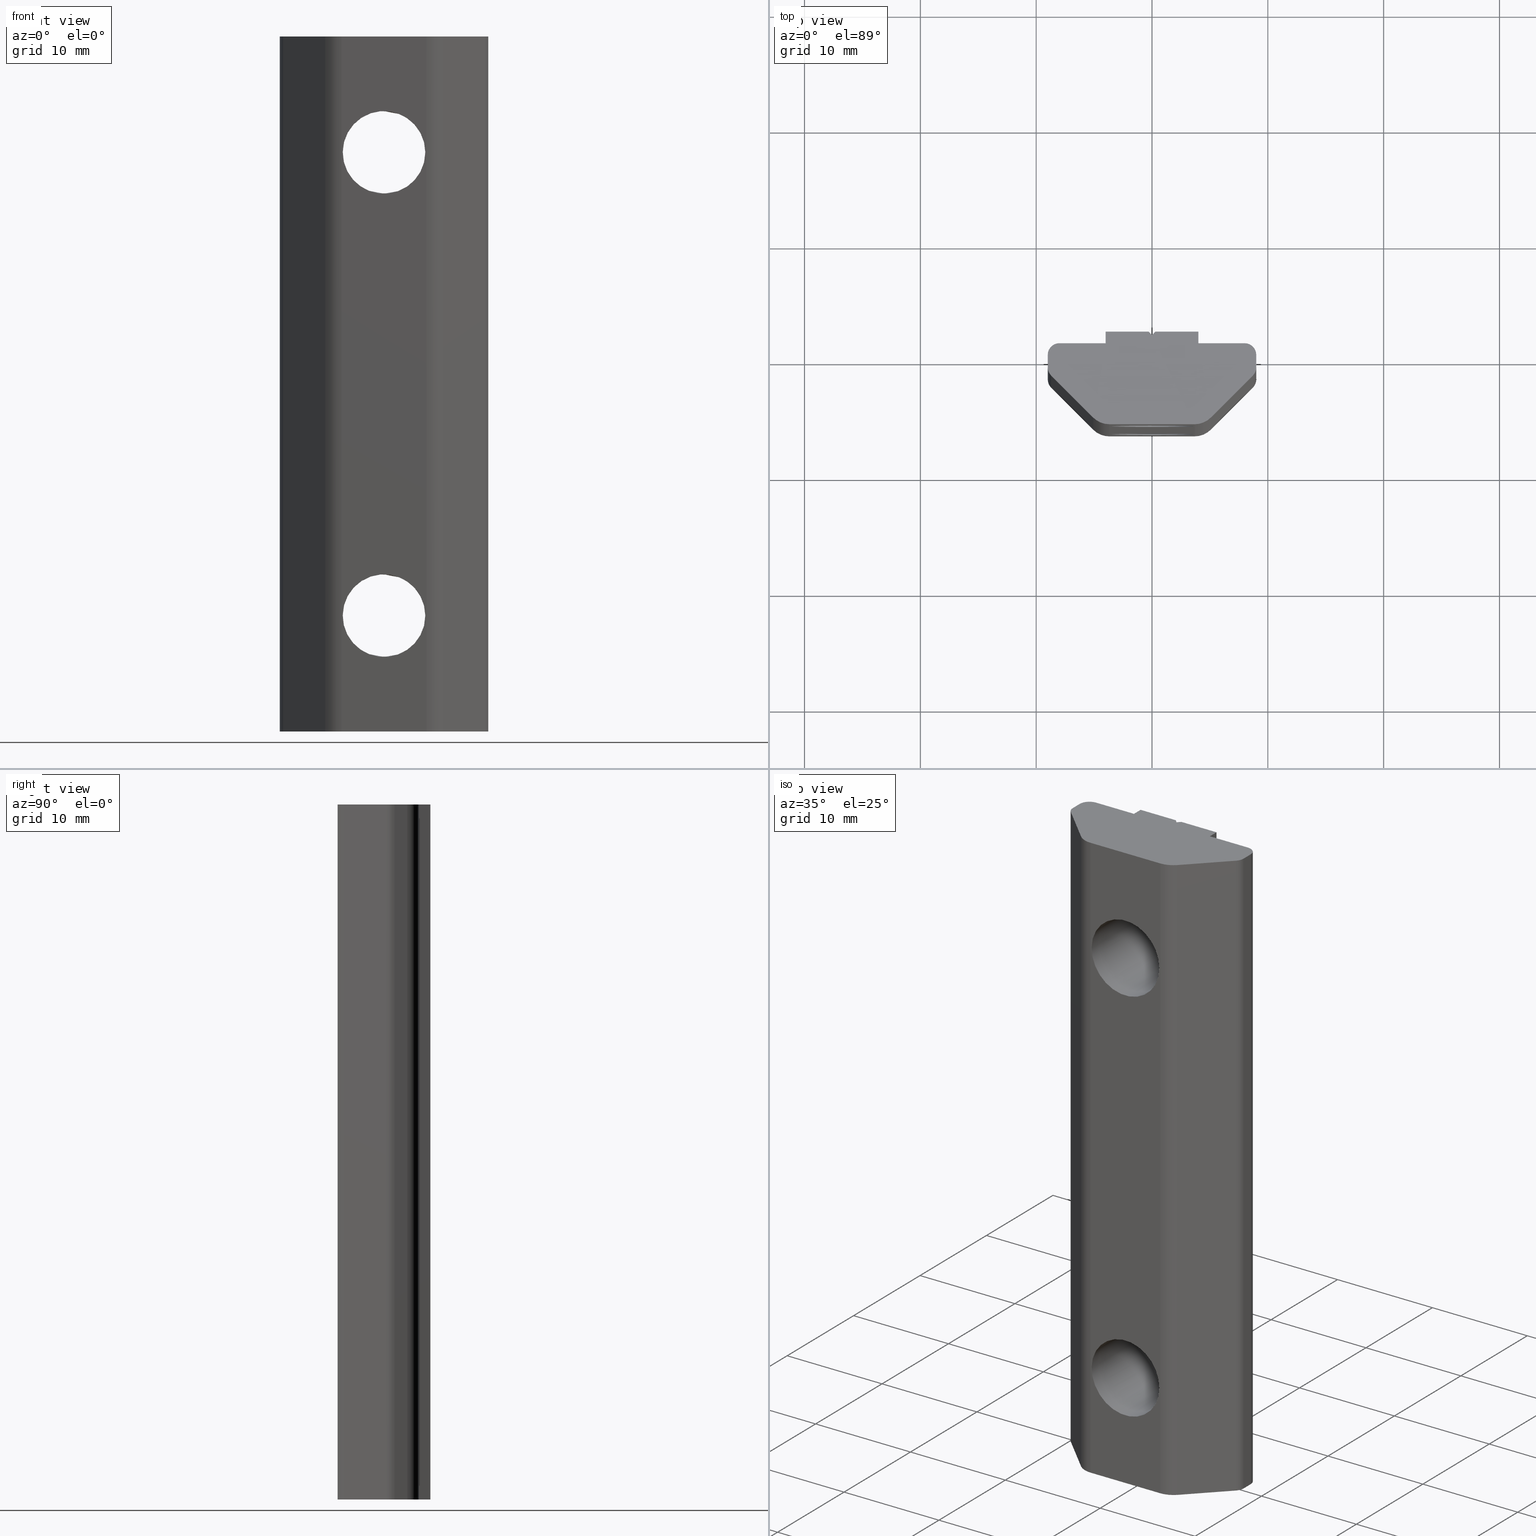
[diagram: canonical four-view strip — front | top / right | iso, engineering-drawing reading convention]
A machine part, canonical four-view strip (front | top / right | iso — engineering-drawing reading convention). The complete STEP part file that produces these views, byte-faithful:
ISO-10303-21;
HEADER;
/****************************************************************
 * Generated by software with PDE/Lib inside                    *
 * PDElib Version v51a, created Tue 12/06/2005                  *
 * International Technegroup Inc. (www.iti-oh.com)              *
 ****************************************************************/
FILE_DESCRIPTION((''),'2;1');
FILE_NAME('D:\\3D_modulsystem\\accessori\\MA1344.stp','2007-09-17T16:42:38',('giancarlo'),(''),'Autodesk Inventor 11','Autodesk Inventor 11','');
FILE_SCHEMA(('AUTOMOTIVE_DESIGN { 1 0 10303 214 1 1 1 1 }'));
ENDSEC;
DATA;
#5=APPLICATION_CONTEXT('automotive design');
#6=APPLICATION_PROTOCOL_DEFINITION('Draft International Standard','automotive_design',1998,#5);
#7=PRODUCT_CONTEXT('None',#5,'mechanical');
#8=PRODUCT('MA1344','MA1344','None',(#7));
#9=PRODUCT_RELATED_PRODUCT_CATEGORY('part','description',(#8));
#10=PRODUCT_DEFINITION_FORMATION('None','None',#8);
#11=PRODUCT_DEFINITION_CONTEXT('part definition',#5,'design');
#12=PRODUCT_DEFINITION('None','None',#10,#11);
#18=(NAMED_UNIT(*)PLANE_ANGLE_UNIT()SI_UNIT($,.RADIAN.));
#19=DIMENSIONAL_EXPONENTS(0.0,0.0,0.0,0.0,0.0,0.0,0.0);
#20=PLANE_ANGLE_MEASURE_WITH_UNIT(PLANE_ANGLE_MEASURE(0.017453292500000),#18);
#24=(CONVERSION_BASED_UNIT('DEGREE',#20)NAMED_UNIT(#19)PLANE_ANGLE_UNIT());
#28=(NAMED_UNIT(*)SI_UNIT($,.STERADIAN.)SOLID_ANGLE_UNIT());
#32=(LENGTH_UNIT()NAMED_UNIT(*)SI_UNIT(.MILLI.,.METRE.));
#34=UNCERTAINTY_MEASURE_WITH_UNIT(LENGTH_MEASURE(0.010000000000000),#32,'DISTANCE_ACCURACY_VALUE','');
#36=(GEOMETRIC_REPRESENTATION_CONTEXT(3)GLOBAL_UNCERTAINTY_ASSIGNED_CONTEXT((#34))GLOBAL_UNIT_ASSIGNED_CONTEXT((#24,#28,#32))REPRESENTATION_CONTEXT('None','None'));
#37=AXIS2_PLACEMENT_3D('',#38,#39,#40);
#38=CARTESIAN_POINT('',(0.0,0.0,0.0));
#39=DIRECTION('',(0.0,0.0,1.0));
#40=DIRECTION('',(1.0,0.0,0.0));
#41=SHAPE_REPRESENTATION('',(#37),#36);
#42=PRODUCT_DEFINITION_SHAPE('','',#12);
#43=SHAPE_DEFINITION_REPRESENTATION(#42,#41);
#44=CARTESIAN_POINT('',(-3.566999999999998,1.796296336915761,20.0));
#45=CARTESIAN_POINT('',(-3.567000000000004,-6.203703663084244,20.0));
#46=CARTESIAN_POINT('',(-3.566999999999997,1.796296336915761,23.566999999999997));
#47=CARTESIAN_POINT('',(-3.567000000000003,-6.203703663084244,23.566999999999997));
#48=CARTESIAN_POINT('',(2.220446E-015,1.796296336915758,23.567000000000000));
#49=CARTESIAN_POINT('',(-3.780759E-015,-6.203703663084246,23.567000000000000));
#50=CARTESIAN_POINT('',(3.567000000000001,1.796296336915755,23.566999999999997));
#51=CARTESIAN_POINT('',(3.566999999999996,-6.203703663084249,23.566999999999997));
#52=CARTESIAN_POINT('',(3.567000000000002,1.796296336915755,20.0));
#53=CARTESIAN_POINT('',(3.566999999999996,-6.203703663084249,20.0));
#54=CARTESIAN_POINT('',(3.567000000000001,1.796296336915755,16.433000000000000));
#55=CARTESIAN_POINT('',(3.566999999999996,-6.203703663084249,16.433000000000000));
#56=CARTESIAN_POINT('',(2.220446E-015,1.796296336915758,16.433000000000000));
#57=CARTESIAN_POINT('',(-3.780759E-015,-6.203703663084246,16.433000000000000));
#58=CARTESIAN_POINT('',(-3.566999999999997,1.796296336915761,16.433000000000000));
#59=CARTESIAN_POINT('',(-3.567000000000003,-6.203703663084244,16.433000000000000));
#60=CARTESIAN_POINT('',(-3.566999999999998,1.796296336915761,20.0));
#61=CARTESIAN_POINT('',(-3.567000000000004,-6.203703663084244,20.0));
#69=(BOUNDED_SURFACE()B_SPLINE_SURFACE(1,2,((#44,#46,#48,#50,#52,#54,#56,#58,#60),(#45,#47,#49,#51,#53,#55,#57,#59,#61)),.UNSPECIFIED.,.F.,.T.,.U.)B_SPLINE_SURFACE_WITH_KNOTS((2,2),(3,2,2,2,3),(-1.121390524250072,1.121390524250070),(0.0,5.603030497677397,11.206060995354793,16.809091493032188,22.412121990709586),.UNSPECIFIED.)GEOMETRIC_REPRESENTATION_ITEM()RATIONAL_B_SPLINE_SURFACE(((1.0,0.707106781186548,1.0,0.707106781186548,1.0,0.707106781186548,1.0,0.707106781186548,1.0),(1.0,0.707106781186548,1.0,0.707106781186548,1.0,0.707106781186548,1.0,0.707106781186548,1.0)))REPRESENTATION_ITEM('')SURFACE());
#70=CARTESIAN_POINT('',(2.884628E-016,1.496296336915752,16.433000000000000));
#71=VERTEX_POINT('',#70);
#72=CARTESIAN_POINT('',(0.300000000000001,1.796296336915752,16.445638031938785));
#73=VERTEX_POINT('',#72);
#74=CARTESIAN_POINT('',(1.995401E-015,1.496296336915754,20.0));
#75=DIRECTION('',(0.707106781186546,-0.707106781186549,0.0));
#76=DIRECTION('',(0.707106781186549,0.707106781186546,0.0));
#77=AXIS2_PLACEMENT_3D('',#74,#75,#76);
#78=ELLIPSE('',#77,5.044499776984827,3.567000000000001);
#79=EDGE_CURVE('',#71,#73,#78,.T.);
#80=ORIENTED_EDGE('',*,*,#79,.F.);
#81=CARTESIAN_POINT('',(-0.300000000000000,1.796296336915752,16.445638031938785));
#82=VERTEX_POINT('',#81);
#83=CARTESIAN_POINT('',(1.995401E-015,1.496296336915749,20.0));
#84=DIRECTION('',(-0.707106781186547,-0.707106781186548,0.0));
#85=DIRECTION('',(0.707106781186548,-0.707106781186547,0.0));
#86=AXIS2_PLACEMENT_3D('',#83,#84,#85);
#87=ELLIPSE('',#86,5.044499776984824,3.567000000000001);
#88=EDGE_CURVE('',#82,#71,#87,.T.);
#89=ORIENTED_EDGE('',*,*,#88,.F.);
#90=CARTESIAN_POINT('',(-0.300000000000000,1.796296336915752,23.554361968061215));
#91=VERTEX_POINT('',#90);
#92=CARTESIAN_POINT('',(2.220446E-015,1.796296336915752,20.0));
#93=DIRECTION('',(0.0,-1.0,0.0));
#94=DIRECTION('',(1.0,0.0,0.0));
#95=AXIS2_PLACEMENT_3D('',#92,#93,#94);
#96=CIRCLE('',#95,3.567000000000000);
#97=EDGE_CURVE('',#91,#82,#96,.T.);
#98=ORIENTED_EDGE('',*,*,#97,.F.);
#99=CARTESIAN_POINT('',(2.884628E-016,1.496296336915752,23.567000000000000));
#100=VERTEX_POINT('',#99);
#101=CARTESIAN_POINT('',(1.995401E-015,1.496296336915749,20.0));
#102=DIRECTION('',(-0.707106781186547,-0.707106781186548,0.0));
#103=DIRECTION('',(0.707106781186548,-0.707106781186547,0.0));
#104=AXIS2_PLACEMENT_3D('',#101,#102,#103);
#105=ELLIPSE('',#104,5.044499776984824,3.567000000000001);
#106=EDGE_CURVE('',#100,#91,#105,.T.);
#107=ORIENTED_EDGE('',*,*,#106,.F.);
#108=CARTESIAN_POINT('',(0.300000000000001,1.796296336915752,23.554361968061215));
#109=VERTEX_POINT('',#108);
#110=CARTESIAN_POINT('',(1.995401E-015,1.496296336915754,20.0));
#111=DIRECTION('',(0.707106781186546,-0.707106781186549,0.0));
#112=DIRECTION('',(0.707106781186549,0.707106781186546,0.0));
#113=AXIS2_PLACEMENT_3D('',#110,#111,#112);
#114=ELLIPSE('',#113,5.044499776984827,3.567000000000001);
#115=EDGE_CURVE('',#109,#100,#114,.T.);
#116=ORIENTED_EDGE('',*,*,#115,.F.);
#117=CARTESIAN_POINT('',(2.220446E-015,1.796296336915752,20.0));
#118=DIRECTION('',(0.0,-1.0,0.0));
#119=DIRECTION('',(1.0,0.0,0.0));
#120=AXIS2_PLACEMENT_3D('',#117,#118,#119);
#121=CIRCLE('',#120,3.567000000000000);
#122=EDGE_CURVE('',#73,#109,#121,.T.);
#123=ORIENTED_EDGE('',*,*,#122,.F.);
#124=EDGE_LOOP('',(#80,#89,#98,#107,#116,#123));
#125=FACE_OUTER_BOUND('',#124,.T.);
#126=CARTESIAN_POINT('',(3.566999999999996,-6.203703663084252,20.0));
#127=VERTEX_POINT('',#126);
#128=CARTESIAN_POINT('',(-3.780759E-015,-6.203703663084241,20.0));
#129=DIRECTION('',(0.0,1.0,0.0));
#130=DIRECTION('',(1.0,0.0,0.0));
#131=AXIS2_PLACEMENT_3D('',#128,#129,#130);
#132=CIRCLE('',#131,3.567000000000000);
#133=EDGE_CURVE('',#127,#127,#132,.T.);
#134=ORIENTED_EDGE('',*,*,#133,.F.);
#135=EDGE_LOOP('',(#134));
#136=FACE_BOUND('',#135,.T.);
#137=ADVANCED_FACE('',(#125,#136),#69,.F.);
#138=CARTESIAN_POINT('',(-3.566999999999998,1.796296336915761,-20.0));
#139=CARTESIAN_POINT('',(-3.567000000000004,-6.203703663084244,-20.0));
#140=CARTESIAN_POINT('',(-3.566999999999997,1.796296336915761,-16.433000000000000));
#141=CARTESIAN_POINT('',(-3.567000000000003,-6.203703663084244,-16.433000000000000));
#142=CARTESIAN_POINT('',(2.220446E-015,1.796296336915758,-16.433000000000000));
#143=CARTESIAN_POINT('',(-3.780759E-015,-6.203703663084246,-16.433000000000000));
#144=CARTESIAN_POINT('',(3.567000000000001,1.796296336915755,-16.433000000000000));
#145=CARTESIAN_POINT('',(3.566999999999996,-6.203703663084249,-16.433000000000000));
#146=CARTESIAN_POINT('',(3.567000000000002,1.796296336915755,-20.0));
#147=CARTESIAN_POINT('',(3.566999999999996,-6.203703663084249,-20.0));
#148=CARTESIAN_POINT('',(3.567000000000001,1.796296336915755,-23.566999999999997));
#149=CARTESIAN_POINT('',(3.566999999999996,-6.203703663084249,-23.566999999999997));
#150=CARTESIAN_POINT('',(2.220446E-015,1.796296336915758,-23.567000000000000));
#151=CARTESIAN_POINT('',(-3.780759E-015,-6.203703663084246,-23.567000000000000));
#152=CARTESIAN_POINT('',(-3.566999999999997,1.796296336915761,-23.566999999999997));
#153=CARTESIAN_POINT('',(-3.567000000000003,-6.203703663084244,-23.566999999999997));
#154=CARTESIAN_POINT('',(-3.566999999999998,1.796296336915761,-20.0));
#155=CARTESIAN_POINT('',(-3.567000000000004,-6.203703663084244,-20.0));
#163=(BOUNDED_SURFACE()B_SPLINE_SURFACE(1,2,((#138,#140,#142,#144,#146,#148,#150,#152,#154),(#139,#141,#143,#145,#147,#149,#151,#153,#155)),.UNSPECIFIED.,.F.,.T.,.U.)B_SPLINE_SURFACE_WITH_KNOTS((2,2),(3,2,2,2,3),(-1.121390524250072,1.121390524250070),(0.0,5.603030497677397,11.206060995354793,16.809091493032188,22.412121990709586),.UNSPECIFIED.)GEOMETRIC_REPRESENTATION_ITEM()RATIONAL_B_SPLINE_SURFACE(((1.0,0.707106781186548,1.0,0.707106781186548,1.0,0.707106781186548,1.0,0.707106781186548,1.0),(1.0,0.707106781186548,1.0,0.707106781186548,1.0,0.707106781186548,1.0,0.707106781186548,1.0)))REPRESENTATION_ITEM('')SURFACE());
#164=CARTESIAN_POINT('',(2.884628E-016,1.496296336915752,-23.567000000000000));
#165=VERTEX_POINT('',#164);
#166=CARTESIAN_POINT('',(0.300000000000001,1.796296336915752,-23.554361968061215));
#167=VERTEX_POINT('',#166);
#168=CARTESIAN_POINT('',(1.995401E-015,1.496296336915754,-20.0));
#169=DIRECTION('',(0.707106781186546,-0.707106781186549,0.0));
#170=DIRECTION('',(0.707106781186549,0.707106781186546,0.0));
#171=AXIS2_PLACEMENT_3D('',#168,#169,#170);
#172=ELLIPSE('',#171,5.044499776984827,3.567000000000001);
#173=EDGE_CURVE('',#165,#167,#172,.T.);
#174=ORIENTED_EDGE('',*,*,#173,.F.);
#175=CARTESIAN_POINT('',(-0.300000000000000,1.796296336915752,-23.554361968061215));
#176=VERTEX_POINT('',#175);
#177=CARTESIAN_POINT('',(1.995401E-015,1.496296336915749,-20.0));
#178=DIRECTION('',(-0.707106781186547,-0.707106781186548,0.0));
#179=DIRECTION('',(0.707106781186548,-0.707106781186547,0.0));
#180=AXIS2_PLACEMENT_3D('',#177,#178,#179);
#181=ELLIPSE('',#180,5.044499776984824,3.567000000000001);
#182=EDGE_CURVE('',#176,#165,#181,.T.);
#183=ORIENTED_EDGE('',*,*,#182,.F.);
#184=CARTESIAN_POINT('',(-0.300000000000000,1.796296336915752,-16.445638031938785));
#185=VERTEX_POINT('',#184);
#186=CARTESIAN_POINT('',(2.220446E-015,1.796296336915752,-20.0));
#187=DIRECTION('',(0.0,-1.0,0.0));
#188=DIRECTION('',(1.0,0.0,0.0));
#189=AXIS2_PLACEMENT_3D('',#186,#187,#188);
#190=CIRCLE('',#189,3.567000000000000);
#191=EDGE_CURVE('',#185,#176,#190,.T.);
#192=ORIENTED_EDGE('',*,*,#191,.F.);
#193=CARTESIAN_POINT('',(2.884628E-016,1.496296336915752,-16.433000000000000));
#194=VERTEX_POINT('',#193);
#195=CARTESIAN_POINT('',(1.995401E-015,1.496296336915749,-20.0));
#196=DIRECTION('',(-0.707106781186547,-0.707106781186548,0.0));
#197=DIRECTION('',(0.707106781186548,-0.707106781186547,0.0));
#198=AXIS2_PLACEMENT_3D('',#195,#196,#197);
#199=ELLIPSE('',#198,5.044499776984824,3.567000000000001);
#200=EDGE_CURVE('',#194,#185,#199,.T.);
#201=ORIENTED_EDGE('',*,*,#200,.F.);
#202=CARTESIAN_POINT('',(0.300000000000001,1.796296336915752,-16.445638031938785));
#203=VERTEX_POINT('',#202);
#204=CARTESIAN_POINT('',(1.995401E-015,1.496296336915754,-20.0));
#205=DIRECTION('',(0.707106781186546,-0.707106781186549,0.0));
#206=DIRECTION('',(0.707106781186549,0.707106781186546,0.0));
#207=AXIS2_PLACEMENT_3D('',#204,#205,#206);
#208=ELLIPSE('',#207,5.044499776984827,3.567000000000001);
#209=EDGE_CURVE('',#203,#194,#208,.T.);
#210=ORIENTED_EDGE('',*,*,#209,.F.);
#211=CARTESIAN_POINT('',(2.220446E-015,1.796296336915752,-20.0));
#212=DIRECTION('',(0.0,-1.0,0.0));
#213=DIRECTION('',(1.0,0.0,0.0));
#214=AXIS2_PLACEMENT_3D('',#211,#212,#213);
#215=CIRCLE('',#214,3.567000000000000);
#216=EDGE_CURVE('',#167,#203,#215,.T.);
#217=ORIENTED_EDGE('',*,*,#216,.F.);
#218=EDGE_LOOP('',(#174,#183,#192,#201,#210,#217));
#219=FACE_OUTER_BOUND('',#218,.T.);
#220=CARTESIAN_POINT('',(3.566999999999996,-6.203703663084252,-20.0));
#221=VERTEX_POINT('',#220);
#222=CARTESIAN_POINT('',(-3.780759E-015,-6.203703663084241,-20.0));
#223=DIRECTION('',(0.0,1.0,0.0));
#224=DIRECTION('',(1.0,0.0,0.0));
#225=AXIS2_PLACEMENT_3D('',#222,#223,#224);
#226=CIRCLE('',#225,3.567000000000000);
#227=EDGE_CURVE('',#221,#221,#226,.T.);
#228=ORIENTED_EDGE('',*,*,#227,.F.);
#229=EDGE_LOOP('',(#228));
#230=FACE_BOUND('',#229,.T.);
#231=ADVANCED_FACE('',(#219,#230),#163,.F.);
#232=CARTESIAN_POINT('',(0.300000000000001,1.796296336915752,0.0));
#233=DIRECTION('',(0.0,1.0,0.0));
#234=DIRECTION('',(0.0,0.0,1.0));
#235=AXIS2_PLACEMENT_3D('',#232,#233,#234);
#236=PLANE('',#235);
#237=ORIENTED_EDGE('',*,*,#122,.T.);
#238=CARTESIAN_POINT('',(0.300000000000001,1.796296336915752,30.0));
#239=VERTEX_POINT('',#238);
#240=CARTESIAN_POINT('',(0.300000000000001,1.796296336915752,30.0));
#241=DIRECTION('',(0.0,0.0,-1.0));
#242=VECTOR('',#241,6.445638031938785);
#243=LINE('',#240,#242);
#244=EDGE_CURVE('',#239,#109,#243,.T.);
#245=ORIENTED_EDGE('',*,*,#244,.F.);
#246=CARTESIAN_POINT('',(3.999999999999999,1.796296336915756,30.0));
#247=VERTEX_POINT('',#246);
#248=CARTESIAN_POINT('',(0.300000000000001,1.796296336915752,30.0));
#249=DIRECTION('',(1.0,0.0,0.0));
#250=VECTOR('',#249,3.699999999999998);
#251=LINE('',#248,#250);
#252=EDGE_CURVE('',#239,#247,#251,.T.);
#253=ORIENTED_EDGE('',*,*,#252,.T.);
#254=CARTESIAN_POINT('',(3.999999999999999,1.796296336915756,-30.0));
#255=VERTEX_POINT('',#254);
#256=CARTESIAN_POINT('',(3.999999999999999,1.796296336915756,30.0));
#257=DIRECTION('',(0.0,0.0,-1.0));
#258=VECTOR('',#257,60.0);
#259=LINE('',#256,#258);
#260=EDGE_CURVE('',#247,#255,#259,.T.);
#261=ORIENTED_EDGE('',*,*,#260,.T.);
#262=CARTESIAN_POINT('',(0.300000000000001,1.796296336915752,-30.0));
#263=VERTEX_POINT('',#262);
#264=CARTESIAN_POINT('',(3.999999999999999,1.796296336915756,-30.0));
#265=DIRECTION('',(-1.0,0.0,0.0));
#266=VECTOR('',#265,3.699999999999998);
#267=LINE('',#264,#266);
#268=EDGE_CURVE('',#255,#263,#267,.T.);
#269=ORIENTED_EDGE('',*,*,#268,.T.);
#270=CARTESIAN_POINT('',(0.300000000000001,1.796296336915752,-23.554361968061215));
#271=DIRECTION('',(0.0,0.0,-1.0));
#272=VECTOR('',#271,6.445638031938785);
#273=LINE('',#270,#272);
#274=EDGE_CURVE('',#167,#263,#273,.T.);
#275=ORIENTED_EDGE('',*,*,#274,.F.);
#276=ORIENTED_EDGE('',*,*,#216,.T.);
#277=CARTESIAN_POINT('',(0.300000000000001,1.796296336915752,16.445638031938785));
#278=DIRECTION('',(0.0,0.0,-1.0));
#279=VECTOR('',#278,32.891276063877569);
#280=LINE('',#277,#279);
#281=EDGE_CURVE('',#73,#203,#280,.T.);
#282=ORIENTED_EDGE('',*,*,#281,.F.);
#283=EDGE_LOOP('',(#237,#245,#253,#261,#269,#275,#276,#282));
#284=FACE_OUTER_BOUND('',#283,.T.);
#285=ADVANCED_FACE('',(#284),#236,.T.);
#286=CARTESIAN_POINT('',(2.884628E-016,1.496296336915752,0.0));
#287=DIRECTION('',(-0.707106781186546,0.707106781186549,0.0));
#288=DIRECTION('',(0.0,0.0,1.0));
#289=AXIS2_PLACEMENT_3D('',#286,#287,#288);
#290=PLANE('',#289);
#291=ORIENTED_EDGE('',*,*,#173,.T.);
#292=ORIENTED_EDGE('',*,*,#274,.T.);
#293=CARTESIAN_POINT('',(2.884628E-016,1.496296336915752,-30.0));
#294=VERTEX_POINT('',#293);
#295=CARTESIAN_POINT('',(0.300000000000001,1.796296336915752,-30.0));
#296=DIRECTION('',(-0.707106781186549,-0.707106781186546,0.0));
#297=VECTOR('',#296,0.424264068711930);
#298=LINE('',#295,#297);
#299=EDGE_CURVE('',#263,#294,#298,.T.);
#300=ORIENTED_EDGE('',*,*,#299,.T.);
#301=CARTESIAN_POINT('',(2.884628E-016,1.496296336915752,-23.567000000000000));
#302=DIRECTION('',(0.0,0.0,-1.0));
#303=VECTOR('',#302,6.433000000000000);
#304=LINE('',#301,#303);
#305=EDGE_CURVE('',#165,#294,#304,.T.);
#306=ORIENTED_EDGE('',*,*,#305,.F.);
#307=EDGE_LOOP('',(#291,#292,#300,#306));
#308=FACE_OUTER_BOUND('',#307,.T.);
#309=ADVANCED_FACE('',(#308),#290,.T.);
#310=CARTESIAN_POINT('',(2.884628E-016,1.496296336915752,0.0));
#311=DIRECTION('',(-0.707106781186546,0.707106781186549,0.0));
#312=DIRECTION('',(0.0,0.0,1.0));
#313=AXIS2_PLACEMENT_3D('',#310,#311,#312);
#314=PLANE('',#313);
#315=ORIENTED_EDGE('',*,*,#115,.T.);
#316=CARTESIAN_POINT('',(2.884628E-016,1.496296336915752,30.0));
#317=VERTEX_POINT('',#316);
#318=CARTESIAN_POINT('',(2.884628E-016,1.496296336915752,30.0));
#319=DIRECTION('',(0.0,0.0,-1.0));
#320=VECTOR('',#319,6.433000000000000);
#321=LINE('',#318,#320);
#322=EDGE_CURVE('',#317,#100,#321,.T.);
#323=ORIENTED_EDGE('',*,*,#322,.F.);
#324=CARTESIAN_POINT('',(2.884628E-016,1.496296336915752,30.0));
#325=DIRECTION('',(0.707106781186549,0.707106781186546,0.0));
#326=VECTOR('',#325,0.424264068711930);
#327=LINE('',#324,#326);
#328=EDGE_CURVE('',#317,#239,#327,.T.);
#329=ORIENTED_EDGE('',*,*,#328,.T.);
#330=ORIENTED_EDGE('',*,*,#244,.T.);
#331=EDGE_LOOP('',(#315,#323,#329,#330));
#332=FACE_OUTER_BOUND('',#331,.T.);
#333=ADVANCED_FACE('',(#332),#314,.T.);
#334=CARTESIAN_POINT('',(2.884628E-016,1.496296336915752,0.0));
#335=DIRECTION('',(-0.707106781186546,0.707106781186549,0.0));
#336=DIRECTION('',(0.0,0.0,1.0));
#337=AXIS2_PLACEMENT_3D('',#334,#335,#336);
#338=PLANE('',#337);
#339=ORIENTED_EDGE('',*,*,#79,.T.);
#340=ORIENTED_EDGE('',*,*,#281,.T.);
#341=ORIENTED_EDGE('',*,*,#209,.T.);
#342=CARTESIAN_POINT('',(2.884628E-016,1.496296336915752,16.433000000000000));
#343=DIRECTION('',(0.0,0.0,-1.0));
#344=VECTOR('',#343,32.866000000000000);
#345=LINE('',#342,#344);
#346=EDGE_CURVE('',#71,#194,#345,.T.);
#347=ORIENTED_EDGE('',*,*,#346,.F.);
#348=EDGE_LOOP('',(#339,#340,#341,#347));
#349=FACE_OUTER_BOUND('',#348,.T.);
#350=ADVANCED_FACE('',(#349),#338,.T.);
#351=CARTESIAN_POINT('',(-0.300000000000000,1.796296336915752,0.0));
#352=DIRECTION('',(0.707106781186547,0.707106781186548,0.0));
#353=DIRECTION('',(0.0,0.0,-1.0));
#354=AXIS2_PLACEMENT_3D('',#351,#352,#353);
#355=PLANE('',#354);
#356=ORIENTED_EDGE('',*,*,#182,.T.);
#357=ORIENTED_EDGE('',*,*,#305,.T.);
#358=CARTESIAN_POINT('',(-0.300000000000000,1.796296336915752,-30.0));
#359=VERTEX_POINT('',#358);
#360=CARTESIAN_POINT('',(2.884628E-016,1.496296336915752,-30.0));
#361=DIRECTION('',(-0.707106781186548,0.707106781186547,0.0));
#362=VECTOR('',#361,0.424264068711929);
#363=LINE('',#360,#362);
#364=EDGE_CURVE('',#294,#359,#363,.T.);
#365=ORIENTED_EDGE('',*,*,#364,.T.);
#366=CARTESIAN_POINT('',(-0.300000000000000,1.796296336915752,-23.554361968061215));
#367=DIRECTION('',(0.0,0.0,-1.0));
#368=VECTOR('',#367,6.445638031938785);
#369=LINE('',#366,#368);
#370=EDGE_CURVE('',#176,#359,#369,.T.);
#371=ORIENTED_EDGE('',*,*,#370,.F.);
#372=EDGE_LOOP('',(#356,#357,#365,#371));
#373=FACE_OUTER_BOUND('',#372,.T.);
#374=ADVANCED_FACE('',(#373),#355,.T.);
#375=CARTESIAN_POINT('',(-0.300000000000000,1.796296336915752,0.0));
#376=DIRECTION('',(0.707106781186547,0.707106781186548,0.0));
#377=DIRECTION('',(0.0,0.0,-1.0));
#378=AXIS2_PLACEMENT_3D('',#375,#376,#377);
#379=PLANE('',#378);
#380=ORIENTED_EDGE('',*,*,#106,.T.);
#381=CARTESIAN_POINT('',(-0.300000000000000,1.796296336915752,30.0));
#382=VERTEX_POINT('',#381);
#383=CARTESIAN_POINT('',(-0.300000000000000,1.796296336915752,30.0));
#384=DIRECTION('',(0.0,0.0,-1.0));
#385=VECTOR('',#384,6.445638031938785);
#386=LINE('',#383,#385);
#387=EDGE_CURVE('',#382,#91,#386,.T.);
#388=ORIENTED_EDGE('',*,*,#387,.F.);
#389=CARTESIAN_POINT('',(-0.300000000000000,1.796296336915752,30.0));
#390=DIRECTION('',(0.707106781186548,-0.707106781186547,0.0));
#391=VECTOR('',#390,0.424264068711929);
#392=LINE('',#389,#391);
#393=EDGE_CURVE('',#382,#317,#392,.T.);
#394=ORIENTED_EDGE('',*,*,#393,.T.);
#395=ORIENTED_EDGE('',*,*,#322,.T.);
#396=EDGE_LOOP('',(#380,#388,#394,#395));
#397=FACE_OUTER_BOUND('',#396,.T.);
#398=ADVANCED_FACE('',(#397),#379,.T.);
#399=CARTESIAN_POINT('',(6.071532E-016,-1.802113305039203,-30.0));
#400=DIRECTION('',(0.0,0.0,1.0));
#401=DIRECTION('',(1.0,0.0,0.0));
#402=AXIS2_PLACEMENT_3D('',#399,#400,#401);
#403=PLANE('',#402);
#404=CARTESIAN_POINT('',(-3.999999999999999,1.796296336915755,-30.0));
#405=VERTEX_POINT('',#404);
#406=CARTESIAN_POINT('',(-3.999999999999999,0.796296336915755,-30.0));
#407=VERTEX_POINT('',#406);
#408=CARTESIAN_POINT('',(-3.999999999999999,1.796296336915755,-30.0));
#409=DIRECTION('',(0.0,-1.0,0.0));
#410=VECTOR('',#409,1.0);
#411=LINE('',#408,#410);
#412=EDGE_CURVE('',#405,#407,#411,.T.);
#413=ORIENTED_EDGE('',*,*,#412,.F.);
#414=CARTESIAN_POINT('',(-0.300000000000000,1.796296336915752,-30.0));
#415=DIRECTION('',(-1.0,0.0,0.0));
#416=VECTOR('',#415,3.699999999999999);
#417=LINE('',#414,#416);
#418=EDGE_CURVE('',#359,#405,#417,.T.);
#419=ORIENTED_EDGE('',*,*,#418,.F.);
#420=ORIENTED_EDGE('',*,*,#364,.F.);
#421=ORIENTED_EDGE('',*,*,#299,.F.);
#422=ORIENTED_EDGE('',*,*,#268,.F.);
#423=CARTESIAN_POINT('',(4.000000000000000,0.796296336915756,-30.0));
#424=VERTEX_POINT('',#423);
#425=CARTESIAN_POINT('',(4.000000000000000,0.796296336915756,-30.0));
#426=DIRECTION('',(0.0,1.0,0.0));
#427=VECTOR('',#426,1.000000000000000);
#428=LINE('',#425,#427);
#429=EDGE_CURVE('',#424,#255,#428,.T.);
#430=ORIENTED_EDGE('',*,*,#429,.F.);
#431=CARTESIAN_POINT('',(8.0,0.796296336915754,-30.0));
#432=VERTEX_POINT('',#431);
#433=CARTESIAN_POINT('',(8.0,0.796296336915754,-30.0));
#434=DIRECTION('',(-1.0,0.0,0.0));
#435=VECTOR('',#434,4.0);
#436=LINE('',#433,#435);
#437=EDGE_CURVE('',#432,#424,#436,.T.);
#438=ORIENTED_EDGE('',*,*,#437,.F.);
#439=CARTESIAN_POINT('',(9.0,-0.203703663084246,-30.0));
#440=VERTEX_POINT('',#439);
#441=CARTESIAN_POINT('',(7.999999999999999,-0.203703663084247,-30.0));
#442=DIRECTION('',(0.0,0.0,1.0));
#443=DIRECTION('',(-1.0,0.0,0.0));
#444=AXIS2_PLACEMENT_3D('',#441,#442,#443);
#445=CIRCLE('',#444,1.000000000000001);
#446=EDGE_CURVE('',#440,#432,#445,.T.);
#447=ORIENTED_EDGE('',*,*,#446,.F.);
#448=CARTESIAN_POINT('',(9.000000000000002,-1.289490100711146,-30.0));
#449=VERTEX_POINT('',#448);
#450=CARTESIAN_POINT('',(9.000000000000002,-1.289490100711146,-30.0));
#451=DIRECTION('',(0.0,1.0,0.0));
#452=VECTOR('',#451,1.085786437626901);
#453=LINE('',#450,#452);
#454=EDGE_CURVE('',#449,#440,#453,.T.);
#455=ORIENTED_EDGE('',*,*,#454,.F.);
#456=CARTESIAN_POINT('',(8.707106781186550,-1.996596881897696,-30.0));
#457=VERTEX_POINT('',#456);
#458=CARTESIAN_POINT('',(8.000000000000004,-1.289490100711149,-30.0));
#459=DIRECTION('',(0.0,0.0,1.0));
#460=DIRECTION('',(-0.707106781186547,0.707106781186548,0.0));
#461=AXIS2_PLACEMENT_3D('',#458,#459,#460);
#462=CIRCLE('',#461,0.999999999999998);
#463=EDGE_CURVE('',#457,#449,#462,.T.);
#464=ORIENTED_EDGE('',*,*,#463,.F.);
#465=CARTESIAN_POINT('',(5.085786437626904,-5.617917225457337,-30.0));
#466=VERTEX_POINT('',#465);
#467=CARTESIAN_POINT('',(5.085786437626904,-5.617917225457337,-30.0));
#468=DIRECTION('',(0.707106781186548,0.707106781186547,0.0));
#469=VECTOR('',#468,5.121320343559643);
#470=LINE('',#467,#469);
#471=EDGE_CURVE('',#466,#457,#470,.T.);
#472=ORIENTED_EDGE('',*,*,#471,.F.);
#473=CARTESIAN_POINT('',(3.671572875253811,-6.203703663084240,-30.0));
#474=VERTEX_POINT('',#473);
#475=CARTESIAN_POINT('',(3.671572875253810,-4.203703663084239,-30.0));
#476=DIRECTION('',(0.0,0.0,1.0));
#477=DIRECTION('',(0.0,1.0,0.0));
#478=AXIS2_PLACEMENT_3D('',#475,#476,#477);
#479=CIRCLE('',#478,2.000000000000001);
#480=EDGE_CURVE('',#474,#466,#479,.T.);
#481=ORIENTED_EDGE('',*,*,#480,.F.);
#482=CARTESIAN_POINT('',(-3.671572875253810,-6.203703663084241,-30.0));
#483=VERTEX_POINT('',#482);
#484=CARTESIAN_POINT('',(-3.671572875253810,-6.203703663084241,-30.0));
#485=DIRECTION('',(1.0,0.0,0.0));
#486=VECTOR('',#485,7.343145750507620);
#487=LINE('',#484,#486);
#488=EDGE_CURVE('',#483,#474,#487,.T.);
#489=ORIENTED_EDGE('',*,*,#488,.F.);
#490=CARTESIAN_POINT('',(-5.085786437626903,-5.617917225457337,-30.0));
#491=VERTEX_POINT('',#490);
#492=CARTESIAN_POINT('',(-3.671572875253812,-4.203703663084248,-30.0));
#493=DIRECTION('',(0.0,0.0,1.0));
#494=DIRECTION('',(0.707106781186549,0.707106781186547,0.0));
#495=AXIS2_PLACEMENT_3D('',#492,#493,#494);
#496=CIRCLE('',#495,1.999999999999993);
#497=EDGE_CURVE('',#491,#483,#496,.T.);
#498=ORIENTED_EDGE('',*,*,#497,.F.);
#499=CARTESIAN_POINT('',(-8.707106781186548,-1.996596881897697,-30.0));
#500=VERTEX_POINT('',#499);
#501=CARTESIAN_POINT('',(-8.707106781186548,-1.996596881897697,-30.0));
#502=DIRECTION('',(0.707106781186548,-0.707106781186547,0.0));
#503=VECTOR('',#502,5.121320343559642);
#504=LINE('',#501,#503);
#505=EDGE_CURVE('',#500,#491,#504,.T.);
#506=ORIENTED_EDGE('',*,*,#505,.F.);
#507=CARTESIAN_POINT('',(-9.0,-1.289490100711149,-30.0));
#508=VERTEX_POINT('',#507);
#509=CARTESIAN_POINT('',(-8.000000000000005,-1.289490100711151,-30.0));
#510=DIRECTION('',(0.0,0.0,1.0));
#511=DIRECTION('',(1.0,0.0,0.0));
#512=AXIS2_PLACEMENT_3D('',#509,#510,#511);
#513=CIRCLE('',#512,0.999999999999995);
#514=EDGE_CURVE('',#508,#500,#513,.T.);
#515=ORIENTED_EDGE('',*,*,#514,.F.);
#516=CARTESIAN_POINT('',(-9.0,-0.203703663084248,-30.0));
#517=VERTEX_POINT('',#516);
#518=CARTESIAN_POINT('',(-9.0,-0.203703663084248,-30.0));
#519=DIRECTION('',(0.0,-1.0,0.0));
#520=VECTOR('',#519,1.085786437626900);
#521=LINE('',#518,#520);
#522=EDGE_CURVE('',#517,#508,#521,.T.);
#523=ORIENTED_EDGE('',*,*,#522,.F.);
#524=CARTESIAN_POINT('',(-8.0,0.796296336915751,-30.0));
#525=VERTEX_POINT('',#524);
#526=CARTESIAN_POINT('',(-7.999999999999998,-0.203703663084250,-30.0));
#527=DIRECTION('',(0.0,0.0,1.0));
#528=DIRECTION('',(0.0,-1.0,0.0));
#529=AXIS2_PLACEMENT_3D('',#526,#527,#528);
#530=CIRCLE('',#529,1.000000000000001);
#531=EDGE_CURVE('',#525,#517,#530,.T.);
#532=ORIENTED_EDGE('',*,*,#531,.F.);
#533=CARTESIAN_POINT('',(-3.999999999999999,0.796296336915755,-30.0));
#534=DIRECTION('',(-1.0,0.0,0.0));
#535=VECTOR('',#534,4.000000000000002);
#536=LINE('',#533,#535);
#537=EDGE_CURVE('',#407,#525,#536,.T.);
#538=ORIENTED_EDGE('',*,*,#537,.F.);
#539=EDGE_LOOP('',(#413,#419,#420,#421,#422,#430,#438,#447,#455,#464,#472,#481,#489,#498,#506,#515,#523,#532,#538));
#540=FACE_OUTER_BOUND('',#539,.T.);
#541=ADVANCED_FACE('',(#540),#403,.F.);
#542=CARTESIAN_POINT('',(-0.300000000000000,1.796296336915752,0.0));
#543=DIRECTION('',(0.707106781186547,0.707106781186548,0.0));
#544=DIRECTION('',(0.0,0.0,-1.0));
#545=AXIS2_PLACEMENT_3D('',#542,#543,#544);
#546=PLANE('',#545);
#547=ORIENTED_EDGE('',*,*,#88,.T.);
#548=ORIENTED_EDGE('',*,*,#346,.T.);
#549=ORIENTED_EDGE('',*,*,#200,.T.);
#550=CARTESIAN_POINT('',(-0.300000000000000,1.796296336915752,16.445638031938785));
#551=DIRECTION('',(0.0,0.0,-1.0));
#552=VECTOR('',#551,32.891276063877569);
#553=LINE('',#550,#552);
#554=EDGE_CURVE('',#82,#185,#553,.T.);
#555=ORIENTED_EDGE('',*,*,#554,.F.);
#556=EDGE_LOOP('',(#547,#548,#549,#555));
#557=FACE_OUTER_BOUND('',#556,.T.);
#558=ADVANCED_FACE('',(#557),#546,.T.);
#559=CARTESIAN_POINT('',(3.999999999999999,1.796296336915756,0.0));
#560=DIRECTION('',(1.0,0.0,0.0));
#561=DIRECTION('',(0.0,0.0,-1.0));
#562=AXIS2_PLACEMENT_3D('',#559,#560,#561);
#563=PLANE('',#562);
#564=CARTESIAN_POINT('',(4.000000000000000,0.796296336915756,30.0));
#565=VERTEX_POINT('',#564);
#566=CARTESIAN_POINT('',(3.999999999999999,1.796296336915756,30.0));
#567=DIRECTION('',(0.0,-1.0,0.0));
#568=VECTOR('',#567,1.000000000000000);
#569=LINE('',#566,#568);
#570=EDGE_CURVE('',#247,#565,#569,.T.);
#571=ORIENTED_EDGE('',*,*,#570,.T.);
#572=CARTESIAN_POINT('',(4.000000000000000,0.796296336915756,30.0));
#573=DIRECTION('',(0.0,0.0,-1.0));
#574=VECTOR('',#573,60.0);
#575=LINE('',#572,#574);
#576=EDGE_CURVE('',#565,#424,#575,.T.);
#577=ORIENTED_EDGE('',*,*,#576,.T.);
#578=ORIENTED_EDGE('',*,*,#429,.T.);
#579=ORIENTED_EDGE('',*,*,#260,.F.);
#580=EDGE_LOOP('',(#571,#577,#578,#579));
#581=FACE_OUTER_BOUND('',#580,.T.);
#582=ADVANCED_FACE('',(#581),#563,.T.);
#583=CARTESIAN_POINT('',(4.000000000000000,0.796296336915756,0.0));
#584=DIRECTION('',(0.0,1.0,0.0));
#585=DIRECTION('',(0.0,0.0,1.0));
#586=AXIS2_PLACEMENT_3D('',#583,#584,#585);
#587=PLANE('',#586);
#588=CARTESIAN_POINT('',(8.0,0.796296336915754,30.0));
#589=VERTEX_POINT('',#588);
#590=CARTESIAN_POINT('',(4.000000000000000,0.796296336915756,30.0));
#591=DIRECTION('',(1.0,0.0,0.0));
#592=VECTOR('',#591,4.0);
#593=LINE('',#590,#592);
#594=EDGE_CURVE('',#565,#589,#593,.T.);
#595=ORIENTED_EDGE('',*,*,#594,.T.);
#596=CARTESIAN_POINT('',(8.0,0.796296336915754,30.0));
#597=DIRECTION('',(0.0,0.0,-1.0));
#598=VECTOR('',#597,60.0);
#599=LINE('',#596,#598);
#600=EDGE_CURVE('',#589,#432,#599,.T.);
#601=ORIENTED_EDGE('',*,*,#600,.T.);
#602=ORIENTED_EDGE('',*,*,#437,.T.);
#603=ORIENTED_EDGE('',*,*,#576,.F.);
#604=EDGE_LOOP('',(#595,#601,#602,#603));
#605=FACE_OUTER_BOUND('',#604,.T.);
#606=ADVANCED_FACE('',(#605),#587,.T.);
#607=CARTESIAN_POINT('',(7.999999999999999,-0.203703663084247,0.0));
#608=DIRECTION('',(0.0,0.0,1.0));
#609=DIRECTION('',(-1.0,0.0,0.0));
#610=AXIS2_PLACEMENT_3D('',#607,#608,#609);
#611=CYLINDRICAL_SURFACE('',#610,1.000000000000001);
#612=CARTESIAN_POINT('',(9.0,-0.203703663084246,30.0));
#613=VERTEX_POINT('',#612);
#614=CARTESIAN_POINT('',(7.999999999999999,-0.203703663084247,30.0));
#615=DIRECTION('',(0.0,0.0,-1.0));
#616=DIRECTION('',(-1.0,0.0,0.0));
#617=AXIS2_PLACEMENT_3D('',#614,#615,#616);
#618=CIRCLE('',#617,1.000000000000001);
#619=EDGE_CURVE('',#589,#613,#618,.T.);
#620=ORIENTED_EDGE('',*,*,#619,.T.);
#621=CARTESIAN_POINT('',(9.0,-0.203703663084246,30.0));
#622=DIRECTION('',(0.0,0.0,-1.0));
#623=VECTOR('',#622,60.0);
#624=LINE('',#621,#623);
#625=EDGE_CURVE('',#613,#440,#624,.T.);
#626=ORIENTED_EDGE('',*,*,#625,.T.);
#627=ORIENTED_EDGE('',*,*,#446,.T.);
#628=ORIENTED_EDGE('',*,*,#600,.F.);
#629=EDGE_LOOP('',(#620,#626,#627,#628));
#630=FACE_OUTER_BOUND('',#629,.T.);
#631=ADVANCED_FACE('',(#630),#611,.T.);
#632=CARTESIAN_POINT('',(9.0,-0.203703663084246,0.0));
#633=DIRECTION('',(1.0,0.0,0.0));
#634=DIRECTION('',(0.0,0.0,-1.0));
#635=AXIS2_PLACEMENT_3D('',#632,#633,#634);
#636=PLANE('',#635);
#637=CARTESIAN_POINT('',(9.000000000000002,-1.289490100711146,30.0));
#638=VERTEX_POINT('',#637);
#639=CARTESIAN_POINT('',(9.0,-0.203703663084246,30.0));
#640=DIRECTION('',(0.0,-1.0,0.0));
#641=VECTOR('',#640,1.085786437626901);
#642=LINE('',#639,#641);
#643=EDGE_CURVE('',#613,#638,#642,.T.);
#644=ORIENTED_EDGE('',*,*,#643,.T.);
#645=CARTESIAN_POINT('',(9.000000000000002,-1.289490100711146,30.0));
#646=DIRECTION('',(0.0,0.0,-1.0));
#647=VECTOR('',#646,60.0);
#648=LINE('',#645,#647);
#649=EDGE_CURVE('',#638,#449,#648,.T.);
#650=ORIENTED_EDGE('',*,*,#649,.T.);
#651=ORIENTED_EDGE('',*,*,#454,.T.);
#652=ORIENTED_EDGE('',*,*,#625,.F.);
#653=EDGE_LOOP('',(#644,#650,#651,#652));
#654=FACE_OUTER_BOUND('',#653,.T.);
#655=ADVANCED_FACE('',(#654),#636,.T.);
#656=CARTESIAN_POINT('',(8.000000000000004,-1.289490100711149,0.0));
#657=DIRECTION('',(0.0,0.0,1.0));
#658=DIRECTION('',(-0.707106781186547,0.707106781186548,0.0));
#659=AXIS2_PLACEMENT_3D('',#656,#657,#658);
#660=CYLINDRICAL_SURFACE('',#659,0.999999999999998);
#661=CARTESIAN_POINT('',(8.707106781186550,-1.996596881897696,30.0));
#662=VERTEX_POINT('',#661);
#663=CARTESIAN_POINT('',(8.000000000000004,-1.289490100711149,30.0));
#664=DIRECTION('',(0.0,0.0,-1.0));
#665=DIRECTION('',(-0.707106781186547,0.707106781186548,0.0));
#666=AXIS2_PLACEMENT_3D('',#663,#664,#665);
#667=CIRCLE('',#666,0.999999999999998);
#668=EDGE_CURVE('',#638,#662,#667,.T.);
#669=ORIENTED_EDGE('',*,*,#668,.T.);
#670=CARTESIAN_POINT('',(8.707106781186550,-1.996596881897696,30.0));
#671=DIRECTION('',(0.0,0.0,-1.0));
#672=VECTOR('',#671,60.0);
#673=LINE('',#670,#672);
#674=EDGE_CURVE('',#662,#457,#673,.T.);
#675=ORIENTED_EDGE('',*,*,#674,.T.);
#676=ORIENTED_EDGE('',*,*,#463,.T.);
#677=ORIENTED_EDGE('',*,*,#649,.F.);
#678=EDGE_LOOP('',(#669,#675,#676,#677));
#679=FACE_OUTER_BOUND('',#678,.T.);
#680=ADVANCED_FACE('',(#679),#660,.T.);
#681=CARTESIAN_POINT('',(8.707106781186550,-1.996596881897696,0.0));
#682=DIRECTION('',(0.707106781186547,-0.707106781186548,0.0));
#683=DIRECTION('',(0.0,0.0,-1.0));
#684=AXIS2_PLACEMENT_3D('',#681,#682,#683);
#685=PLANE('',#684);
#686=CARTESIAN_POINT('',(5.085786437626904,-5.617917225457337,30.0));
#687=VERTEX_POINT('',#686);
#688=CARTESIAN_POINT('',(8.707106781186550,-1.996596881897696,30.0));
#689=DIRECTION('',(-0.707106781186548,-0.707106781186547,0.0));
#690=VECTOR('',#689,5.121320343559643);
#691=LINE('',#688,#690);
#692=EDGE_CURVE('',#662,#687,#691,.T.);
#693=ORIENTED_EDGE('',*,*,#692,.T.);
#694=CARTESIAN_POINT('',(5.085786437626904,-5.617917225457337,30.0));
#695=DIRECTION('',(0.0,0.0,-1.0));
#696=VECTOR('',#695,60.0);
#697=LINE('',#694,#696);
#698=EDGE_CURVE('',#687,#466,#697,.T.);
#699=ORIENTED_EDGE('',*,*,#698,.T.);
#700=ORIENTED_EDGE('',*,*,#471,.T.);
#701=ORIENTED_EDGE('',*,*,#674,.F.);
#702=EDGE_LOOP('',(#693,#699,#700,#701));
#703=FACE_OUTER_BOUND('',#702,.T.);
#704=ADVANCED_FACE('',(#703),#685,.T.);
#705=CARTESIAN_POINT('',(3.671572875253810,-4.203703663084239,0.0));
#706=DIRECTION('',(0.0,0.0,1.0));
#707=DIRECTION('',(0.0,1.0,0.0));
#708=AXIS2_PLACEMENT_3D('',#705,#706,#707);
#709=CYLINDRICAL_SURFACE('',#708,2.000000000000001);
#710=CARTESIAN_POINT('',(3.671572875253811,-6.203703663084240,30.0));
#711=VERTEX_POINT('',#710);
#712=CARTESIAN_POINT('',(3.671572875253810,-4.203703663084239,30.0));
#713=DIRECTION('',(0.0,0.0,-1.0));
#714=DIRECTION('',(0.0,1.0,0.0));
#715=AXIS2_PLACEMENT_3D('',#712,#713,#714);
#716=CIRCLE('',#715,2.000000000000001);
#717=EDGE_CURVE('',#687,#711,#716,.T.);
#718=ORIENTED_EDGE('',*,*,#717,.T.);
#719=CARTESIAN_POINT('',(3.671572875253811,-6.203703663084240,30.0));
#720=DIRECTION('',(0.0,0.0,-1.0));
#721=VECTOR('',#720,60.0);
#722=LINE('',#719,#721);
#723=EDGE_CURVE('',#711,#474,#722,.T.);
#724=ORIENTED_EDGE('',*,*,#723,.T.);
#725=ORIENTED_EDGE('',*,*,#480,.T.);
#726=ORIENTED_EDGE('',*,*,#698,.F.);
#727=EDGE_LOOP('',(#718,#724,#725,#726));
#728=FACE_OUTER_BOUND('',#727,.T.);
#729=ADVANCED_FACE('',(#728),#709,.T.);
#730=CARTESIAN_POINT('',(0.0,-6.203703663084241,0.0));
#731=DIRECTION('',(0.0,-1.0,0.0));
#732=DIRECTION('',(0.0,0.0,-1.0));
#733=AXIS2_PLACEMENT_3D('',#730,#731,#732);
#734=PLANE('',#733);
#735=CARTESIAN_POINT('',(-3.671572875253810,-6.203703663084241,30.0));
#736=VERTEX_POINT('',#735);
#737=CARTESIAN_POINT('',(3.671572875253811,-6.203703663084240,30.0));
#738=DIRECTION('',(-1.0,0.0,0.0));
#739=VECTOR('',#738,7.343145750507620);
#740=LINE('',#737,#739);
#741=EDGE_CURVE('',#711,#736,#740,.T.);
#742=ORIENTED_EDGE('',*,*,#741,.T.);
#743=CARTESIAN_POINT('',(-3.671572875253810,-6.203703663084241,30.0));
#744=DIRECTION('',(0.0,0.0,-1.0));
#745=VECTOR('',#744,60.0);
#746=LINE('',#743,#745);
#747=EDGE_CURVE('',#736,#483,#746,.T.);
#748=ORIENTED_EDGE('',*,*,#747,.T.);
#749=ORIENTED_EDGE('',*,*,#488,.T.);
#750=ORIENTED_EDGE('',*,*,#723,.F.);
#751=EDGE_LOOP('',(#742,#748,#749,#750));
#752=FACE_OUTER_BOUND('',#751,.T.);
#753=ORIENTED_EDGE('',*,*,#133,.T.);
#754=EDGE_LOOP('',(#753));
#755=FACE_BOUND('',#754,.T.);
#756=ORIENTED_EDGE('',*,*,#227,.T.);
#757=EDGE_LOOP('',(#756));
#758=FACE_BOUND('',#757,.T.);
#759=ADVANCED_FACE('',(#752,#755,#758),#734,.T.);
#760=CARTESIAN_POINT('',(-3.671572875253812,-4.203703663084248,0.0));
#761=DIRECTION('',(0.0,0.0,1.0));
#762=DIRECTION('',(0.707106781186549,0.707106781186547,0.0));
#763=AXIS2_PLACEMENT_3D('',#760,#761,#762);
#764=CYLINDRICAL_SURFACE('',#763,1.999999999999993);
#765=CARTESIAN_POINT('',(-5.085786437626903,-5.617917225457337,30.0));
#766=VERTEX_POINT('',#765);
#767=CARTESIAN_POINT('',(-3.671572875253812,-4.203703663084248,30.0));
#768=DIRECTION('',(0.0,0.0,-1.0));
#769=DIRECTION('',(0.707106781186549,0.707106781186547,0.0));
#770=AXIS2_PLACEMENT_3D('',#767,#768,#769);
#771=CIRCLE('',#770,1.999999999999993);
#772=EDGE_CURVE('',#736,#766,#771,.T.);
#773=ORIENTED_EDGE('',*,*,#772,.T.);
#774=CARTESIAN_POINT('',(-5.085786437626903,-5.617917225457337,30.0));
#775=DIRECTION('',(0.0,0.0,-1.0));
#776=VECTOR('',#775,60.0);
#777=LINE('',#774,#776);
#778=EDGE_CURVE('',#766,#491,#777,.T.);
#779=ORIENTED_EDGE('',*,*,#778,.T.);
#780=ORIENTED_EDGE('',*,*,#497,.T.);
#781=ORIENTED_EDGE('',*,*,#747,.F.);
#782=EDGE_LOOP('',(#773,#779,#780,#781));
#783=FACE_OUTER_BOUND('',#782,.T.);
#784=ADVANCED_FACE('',(#783),#764,.T.);
#785=CARTESIAN_POINT('',(-5.085786437626903,-5.617917225457337,0.0));
#786=DIRECTION('',(-0.707106781186547,-0.707106781186548,0.0));
#787=DIRECTION('',(0.0,0.0,1.0));
#788=AXIS2_PLACEMENT_3D('',#785,#786,#787);
#789=PLANE('',#788);
#790=CARTESIAN_POINT('',(-8.707106781186548,-1.996596881897697,30.0));
#791=VERTEX_POINT('',#790);
#792=CARTESIAN_POINT('',(-5.085786437626903,-5.617917225457337,30.0));
#793=DIRECTION('',(-0.707106781186548,0.707106781186547,0.0));
#794=VECTOR('',#793,5.121320343559642);
#795=LINE('',#792,#794);
#796=EDGE_CURVE('',#766,#791,#795,.T.);
#797=ORIENTED_EDGE('',*,*,#796,.T.);
#798=CARTESIAN_POINT('',(-8.707106781186548,-1.996596881897697,30.0));
#799=DIRECTION('',(0.0,0.0,-1.0));
#800=VECTOR('',#799,60.0);
#801=LINE('',#798,#800);
#802=EDGE_CURVE('',#791,#500,#801,.T.);
#803=ORIENTED_EDGE('',*,*,#802,.T.);
#804=ORIENTED_EDGE('',*,*,#505,.T.);
#805=ORIENTED_EDGE('',*,*,#778,.F.);
#806=EDGE_LOOP('',(#797,#803,#804,#805));
#807=FACE_OUTER_BOUND('',#806,.T.);
#808=ADVANCED_FACE('',(#807),#789,.T.);
#809=CARTESIAN_POINT('',(-8.000000000000005,-1.289490100711151,0.0));
#810=DIRECTION('',(0.0,0.0,1.0));
#811=DIRECTION('',(1.0,0.0,0.0));
#812=AXIS2_PLACEMENT_3D('',#809,#810,#811);
#813=CYLINDRICAL_SURFACE('',#812,0.999999999999995);
#814=CARTESIAN_POINT('',(-9.0,-1.289490100711149,30.0));
#815=VERTEX_POINT('',#814);
#816=CARTESIAN_POINT('',(-8.000000000000005,-1.289490100711151,30.0));
#817=DIRECTION('',(0.0,0.0,-1.0));
#818=DIRECTION('',(1.0,0.0,0.0));
#819=AXIS2_PLACEMENT_3D('',#816,#817,#818);
#820=CIRCLE('',#819,0.999999999999995);
#821=EDGE_CURVE('',#791,#815,#820,.T.);
#822=ORIENTED_EDGE('',*,*,#821,.T.);
#823=CARTESIAN_POINT('',(-9.0,-1.289490100711149,30.0));
#824=DIRECTION('',(0.0,0.0,-1.0));
#825=VECTOR('',#824,60.0);
#826=LINE('',#823,#825);
#827=EDGE_CURVE('',#815,#508,#826,.T.);
#828=ORIENTED_EDGE('',*,*,#827,.T.);
#829=ORIENTED_EDGE('',*,*,#514,.T.);
#830=ORIENTED_EDGE('',*,*,#802,.F.);
#831=EDGE_LOOP('',(#822,#828,#829,#830));
#832=FACE_OUTER_BOUND('',#831,.T.);
#833=ADVANCED_FACE('',(#832),#813,.T.);
#834=CARTESIAN_POINT('',(-9.0,-1.289490100711149,0.0));
#835=DIRECTION('',(-1.0,0.0,0.0));
#836=DIRECTION('',(0.0,0.0,1.0));
#837=AXIS2_PLACEMENT_3D('',#834,#835,#836);
#838=PLANE('',#837);
#839=CARTESIAN_POINT('',(-9.0,-0.203703663084248,30.0));
#840=VERTEX_POINT('',#839);
#841=CARTESIAN_POINT('',(-9.0,-1.289490100711149,30.0));
#842=DIRECTION('',(0.0,1.0,0.0));
#843=VECTOR('',#842,1.085786437626900);
#844=LINE('',#841,#843);
#845=EDGE_CURVE('',#815,#840,#844,.T.);
#846=ORIENTED_EDGE('',*,*,#845,.T.);
#847=CARTESIAN_POINT('',(-9.0,-0.203703663084248,30.0));
#848=DIRECTION('',(0.0,0.0,-1.0));
#849=VECTOR('',#848,60.0);
#850=LINE('',#847,#849);
#851=EDGE_CURVE('',#840,#517,#850,.T.);
#852=ORIENTED_EDGE('',*,*,#851,.T.);
#853=ORIENTED_EDGE('',*,*,#522,.T.);
#854=ORIENTED_EDGE('',*,*,#827,.F.);
#855=EDGE_LOOP('',(#846,#852,#853,#854));
#856=FACE_OUTER_BOUND('',#855,.T.);
#857=ADVANCED_FACE('',(#856),#838,.T.);
#858=CARTESIAN_POINT('',(-7.999999999999998,-0.203703663084250,0.0));
#859=DIRECTION('',(0.0,0.0,1.0));
#860=DIRECTION('',(0.0,-1.0,0.0));
#861=AXIS2_PLACEMENT_3D('',#858,#859,#860);
#862=CYLINDRICAL_SURFACE('',#861,1.000000000000001);
#863=CARTESIAN_POINT('',(-8.0,0.796296336915751,30.0));
#864=VERTEX_POINT('',#863);
#865=CARTESIAN_POINT('',(-7.999999999999998,-0.203703663084250,30.0));
#866=DIRECTION('',(0.0,0.0,-1.0));
#867=DIRECTION('',(0.0,-1.0,0.0));
#868=AXIS2_PLACEMENT_3D('',#865,#866,#867);
#869=CIRCLE('',#868,1.000000000000001);
#870=EDGE_CURVE('',#840,#864,#869,.T.);
#871=ORIENTED_EDGE('',*,*,#870,.T.);
#872=CARTESIAN_POINT('',(-8.0,0.796296336915751,30.0));
#873=DIRECTION('',(0.0,0.0,-1.0));
#874=VECTOR('',#873,60.0);
#875=LINE('',#872,#874);
#876=EDGE_CURVE('',#864,#525,#875,.T.);
#877=ORIENTED_EDGE('',*,*,#876,.T.);
#878=ORIENTED_EDGE('',*,*,#531,.T.);
#879=ORIENTED_EDGE('',*,*,#851,.F.);
#880=EDGE_LOOP('',(#871,#877,#878,#879));
#881=FACE_OUTER_BOUND('',#880,.T.);
#882=ADVANCED_FACE('',(#881),#862,.T.);
#883=CARTESIAN_POINT('',(-8.0,0.796296336915751,0.0));
#884=DIRECTION('',(0.0,1.0,0.0));
#885=DIRECTION('',(0.0,0.0,1.0));
#886=AXIS2_PLACEMENT_3D('',#883,#884,#885);
#887=PLANE('',#886);
#888=CARTESIAN_POINT('',(-3.999999999999999,0.796296336915755,30.0));
#889=VERTEX_POINT('',#888);
#890=CARTESIAN_POINT('',(-8.0,0.796296336915751,30.0));
#891=DIRECTION('',(1.0,0.0,0.0));
#892=VECTOR('',#891,4.000000000000002);
#893=LINE('',#890,#892);
#894=EDGE_CURVE('',#864,#889,#893,.T.);
#895=ORIENTED_EDGE('',*,*,#894,.T.);
#896=CARTESIAN_POINT('',(-3.999999999999999,0.796296336915755,30.0));
#897=DIRECTION('',(0.0,0.0,-1.0));
#898=VECTOR('',#897,60.0);
#899=LINE('',#896,#898);
#900=EDGE_CURVE('',#889,#407,#899,.T.);
#901=ORIENTED_EDGE('',*,*,#900,.T.);
#902=ORIENTED_EDGE('',*,*,#537,.T.);
#903=ORIENTED_EDGE('',*,*,#876,.F.);
#904=EDGE_LOOP('',(#895,#901,#902,#903));
#905=FACE_OUTER_BOUND('',#904,.T.);
#906=ADVANCED_FACE('',(#905),#887,.T.);
#907=CARTESIAN_POINT('',(-3.999999999999999,0.796296336915755,0.0));
#908=DIRECTION('',(-1.0,0.0,0.0));
#909=DIRECTION('',(0.0,0.0,1.0));
#910=AXIS2_PLACEMENT_3D('',#907,#908,#909);
#911=PLANE('',#910);
#912=CARTESIAN_POINT('',(-3.999999999999999,1.796296336915755,30.0));
#913=VERTEX_POINT('',#912);
#914=CARTESIAN_POINT('',(-3.999999999999999,0.796296336915755,30.0));
#915=DIRECTION('',(0.0,1.0,0.0));
#916=VECTOR('',#915,1.0);
#917=LINE('',#914,#916);
#918=EDGE_CURVE('',#889,#913,#917,.T.);
#919=ORIENTED_EDGE('',*,*,#918,.T.);
#920=CARTESIAN_POINT('',(-3.999999999999999,1.796296336915755,-30.0));
#921=DIRECTION('',(0.0,0.0,1.0));
#922=VECTOR('',#921,60.0);
#923=LINE('',#920,#922);
#924=EDGE_CURVE('',#405,#913,#923,.T.);
#925=ORIENTED_EDGE('',*,*,#924,.F.);
#926=ORIENTED_EDGE('',*,*,#412,.T.);
#927=ORIENTED_EDGE('',*,*,#900,.F.);
#928=EDGE_LOOP('',(#919,#925,#926,#927));
#929=FACE_OUTER_BOUND('',#928,.T.);
#930=ADVANCED_FACE('',(#929),#911,.T.);
#931=CARTESIAN_POINT('',(-3.999999999999999,1.796296336915755,0.0));
#932=DIRECTION('',(0.0,1.0,0.0));
#933=DIRECTION('',(0.0,0.0,1.0));
#934=AXIS2_PLACEMENT_3D('',#931,#932,#933);
#935=PLANE('',#934);
#936=ORIENTED_EDGE('',*,*,#97,.T.);
#937=ORIENTED_EDGE('',*,*,#554,.T.);
#938=ORIENTED_EDGE('',*,*,#191,.T.);
#939=ORIENTED_EDGE('',*,*,#370,.T.);
#940=ORIENTED_EDGE('',*,*,#418,.T.);
#941=ORIENTED_EDGE('',*,*,#924,.T.);
#942=CARTESIAN_POINT('',(-3.999999999999999,1.796296336915755,30.0));
#943=DIRECTION('',(1.0,0.0,0.0));
#944=VECTOR('',#943,3.699999999999999);
#945=LINE('',#942,#944);
#946=EDGE_CURVE('',#913,#382,#945,.T.);
#947=ORIENTED_EDGE('',*,*,#946,.T.);
#948=ORIENTED_EDGE('',*,*,#387,.T.);
#949=EDGE_LOOP('',(#936,#937,#938,#939,#940,#941,#947,#948));
#950=FACE_OUTER_BOUND('',#949,.T.);
#951=ADVANCED_FACE('',(#950),#935,.T.);
#952=CARTESIAN_POINT('',(1.477225E-016,-1.802113305039203,30.0));
#953=DIRECTION('',(0.0,0.0,1.0));
#954=DIRECTION('',(1.0,0.0,0.0));
#955=AXIS2_PLACEMENT_3D('',#952,#953,#954);
#956=PLANE('',#955);
#957=ORIENTED_EDGE('',*,*,#393,.F.);
#958=ORIENTED_EDGE('',*,*,#946,.F.);
#959=ORIENTED_EDGE('',*,*,#918,.F.);
#960=ORIENTED_EDGE('',*,*,#894,.F.);
#961=ORIENTED_EDGE('',*,*,#870,.F.);
#962=ORIENTED_EDGE('',*,*,#845,.F.);
#963=ORIENTED_EDGE('',*,*,#821,.F.);
#964=ORIENTED_EDGE('',*,*,#796,.F.);
#965=ORIENTED_EDGE('',*,*,#772,.F.);
#966=ORIENTED_EDGE('',*,*,#741,.F.);
#967=ORIENTED_EDGE('',*,*,#717,.F.);
#968=ORIENTED_EDGE('',*,*,#692,.F.);
#969=ORIENTED_EDGE('',*,*,#668,.F.);
#970=ORIENTED_EDGE('',*,*,#643,.F.);
#971=ORIENTED_EDGE('',*,*,#619,.F.);
#972=ORIENTED_EDGE('',*,*,#594,.F.);
#973=ORIENTED_EDGE('',*,*,#570,.F.);
#974=ORIENTED_EDGE('',*,*,#252,.F.);
#975=ORIENTED_EDGE('',*,*,#328,.F.);
#976=EDGE_LOOP('',(#957,#958,#959,#960,#961,#962,#963,#964,#965,#966,#967,#968,#969,#970,#971,#972,#973,#974,#975));
#977=FACE_OUTER_BOUND('',#976,.T.);
#978=ADVANCED_FACE('',(#977),#956,.T.);
#979=CLOSED_SHELL('',(#137,#231,#285,#309,#333,#350,#374,#398,#541,#558,#582,#606,#631,#655,#680,#704,#729,#759,#784,#808,#833,#857,#882,#906,#930,#951,#978));
#980=MANIFOLD_SOLID_BREP('',#979);
#981=COLOUR_RGB('Default',0.752941191196442,0.752941191196442,0.752941191196442);
#982=FILL_AREA_STYLE_COLOUR('Default',#981);
#983=FILL_AREA_STYLE('Default',(#982));
#984=SURFACE_STYLE_FILL_AREA(#983);
#985=SURFACE_SIDE_STYLE('Default',(#984));
#986=SURFACE_STYLE_USAGE(.BOTH.,#985);
#987=PRESENTATION_STYLE_ASSIGNMENT((#986));
#988=STYLED_ITEM('',(#987),#980);
#989=MECHANICAL_DESIGN_GEOMETRIC_PRESENTATION_REPRESENTATION('',(#988),#36);
#990=ADVANCED_BREP_SHAPE_REPRESENTATION('ABSR',(#980),#36);
#991=SHAPE_REPRESENTATION_RELATIONSHIP('SRR','None',#990,#41);
ENDSEC;
END-ISO-10303-21;
